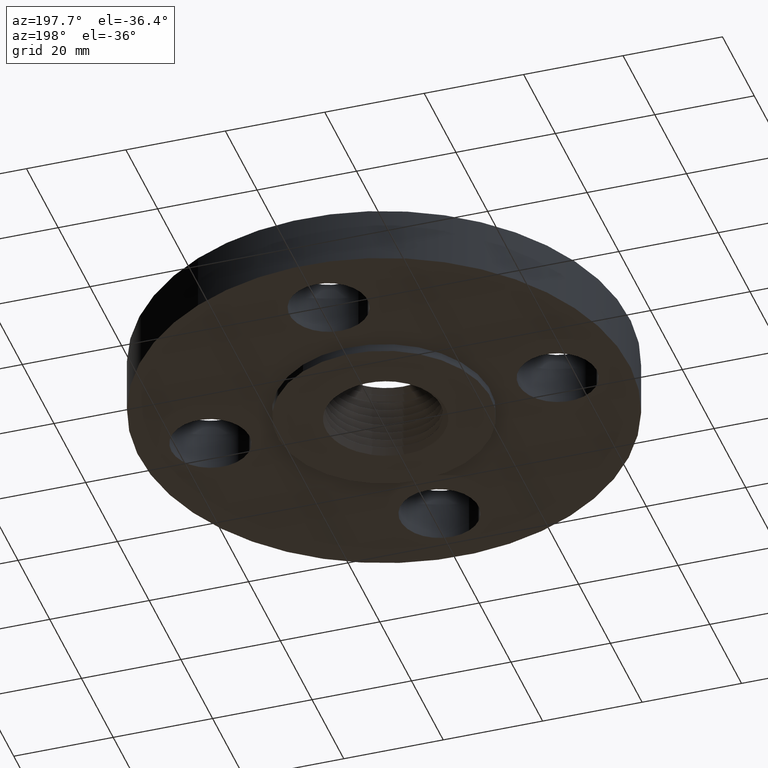
[diagram: clean part render]
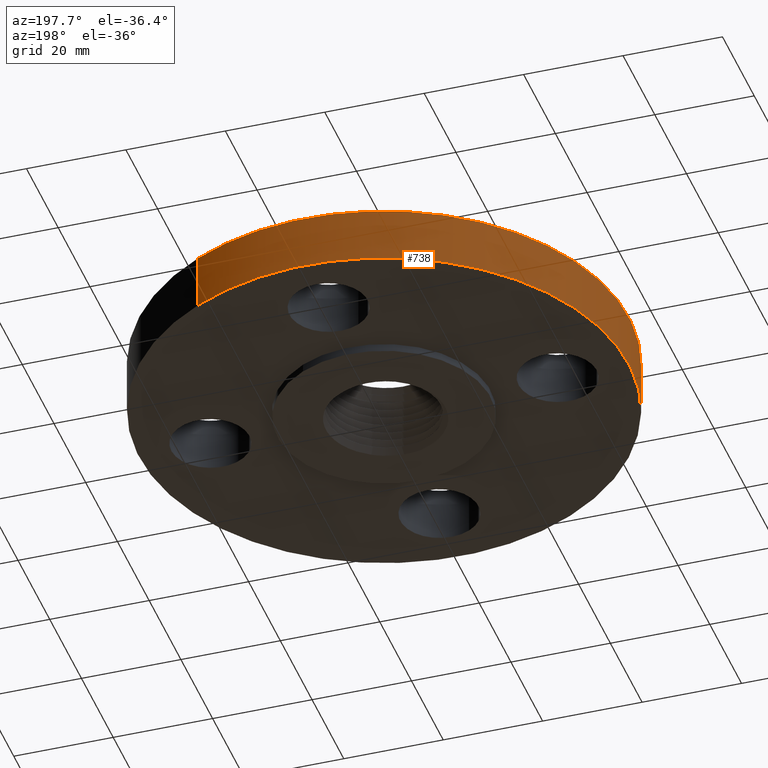
[diagram: same view with one face highlighted and labeled with its STEP entity id]
A machine part, auxiliary view. The second image highlights one B-rep face of the part: STEP entity #738.
In plain terms, the highlighted cylindrical surface (partial cylindrical patch) has radius 49.276 mm, axis along (0, 0, -1).
Its self-contained STEP definition (entity closure, byte-faithful):
#473=AXIS2_PLACEMENT_3D('Circle Axis2P3D',#471,#472,$) ;
#699=AXIS2_PLACEMENT_3D('Cylinder Axis2P3D',#696,#697,#698) ;
#729=AXIS2_PLACEMENT_3D('Circle Axis2P3D',#727,#728,$) ;
#471=CARTESIAN_POINT('Axis2P3D Location',(0.,0.,0.)) ;
#475=CARTESIAN_POINT('Vertex',(-0.930085544896,-1.70251017007,2.09805925913E-016)) ;
#477=CARTESIAN_POINT('Vertex',(0.930085544896,1.70251017007,2.09805925913E-016)) ;
#696=CARTESIAN_POINT('Axis2P3D Location',(0.,0.,0.248750000001)) ;
#701=CARTESIAN_POINT('Line Origine',(0.930085544896,1.70251017007,0.220000000001)) ;
#705=CARTESIAN_POINT('Vertex',(0.930085544896,1.70251017007,0.440000000002)) ;
#712=CARTESIAN_POINT('Vertex',(-0.930085544896,-1.70251017007,0.440000000002)) ;
#715=CARTESIAN_POINT('Line Origine',(-0.930085544896,-1.70251017007,0.220000000001)) ;
#727=CARTESIAN_POINT('Axis2P3D Location',(0.,0.,0.440000000002)) ;
#472=DIRECTION('Axis2P3D Direction',(0.,0.,-0.0393700787402)) ;
#697=DIRECTION('Axis2P3D Direction',(0.,0.,-0.0393700787402)) ;
#698=DIRECTION('Axis2P3D XDirection',(-0.0188750212049,-0.0345504945626,0.)) ;
#702=DIRECTION('Vector Direction',(0.,0.,-0.0393700787402)) ;
#716=DIRECTION('Vector Direction',(0.,0.,-0.0393700787402)) ;
#728=DIRECTION('Axis2P3D Direction',(0.,0.,-0.0393700787402)) ;
#703=VECTOR('Line Direction',#702,0.0393700787402) ;
#717=VECTOR('Line Direction',#716,0.0393700787402) ;
#733=ORIENTED_EDGE('',*,*,#479,.F.) ;
#734=ORIENTED_EDGE('',*,*,#719,.T.) ;
#735=ORIENTED_EDGE('',*,*,#731,.T.) ;
#736=ORIENTED_EDGE('',*,*,#707,.F.) ;
#738=ADVANCED_FACE('PartBody',(#737),#700,.T.) ;
#474=CIRCLE('generated circle',#473,1.94000000001) ;
#730=CIRCLE('generated circle',#729,1.94000000001) ;
#700=CYLINDRICAL_SURFACE('generated cylinder',#699,1.94000000001) ;
#479=EDGE_CURVE('',#476,#478,#474,.T.) ;
#707=EDGE_CURVE('',#478,#706,#704,.F.) ;
#719=EDGE_CURVE('',#476,#713,#718,.F.) ;
#731=EDGE_CURVE('',#713,#706,#730,.T.) ;
#732=EDGE_LOOP('',(#733,#734,#735,#736)) ;
#737=FACE_OUTER_BOUND('',#732,.T.) ;
#704=LINE('Line',#701,#703) ;
#718=LINE('Line',#715,#717) ;
#476=VERTEX_POINT('',#475) ;
#478=VERTEX_POINT('',#477) ;
#706=VERTEX_POINT('',#705) ;
#713=VERTEX_POINT('',#712) ;